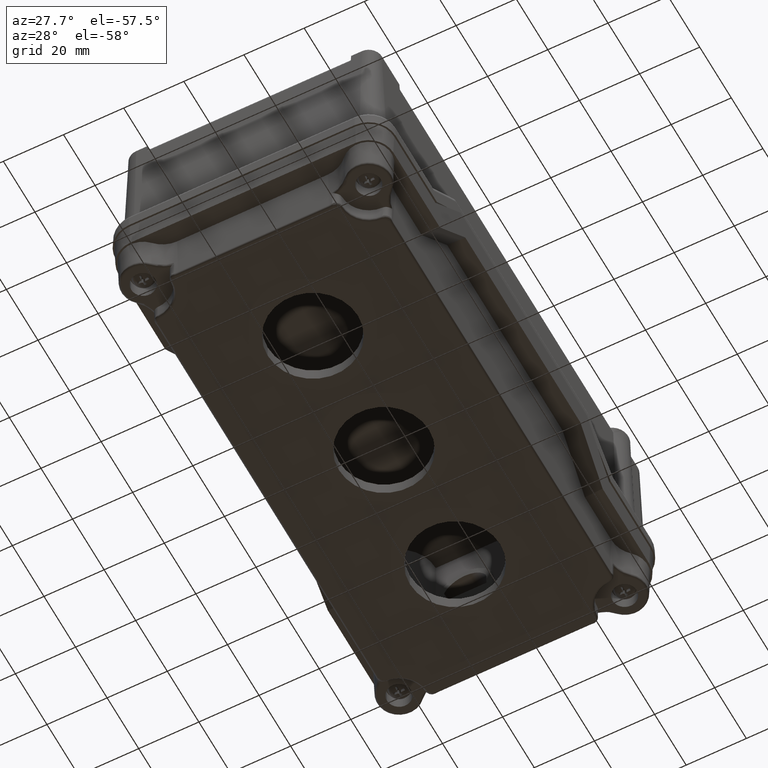
[diagram: clean part render]
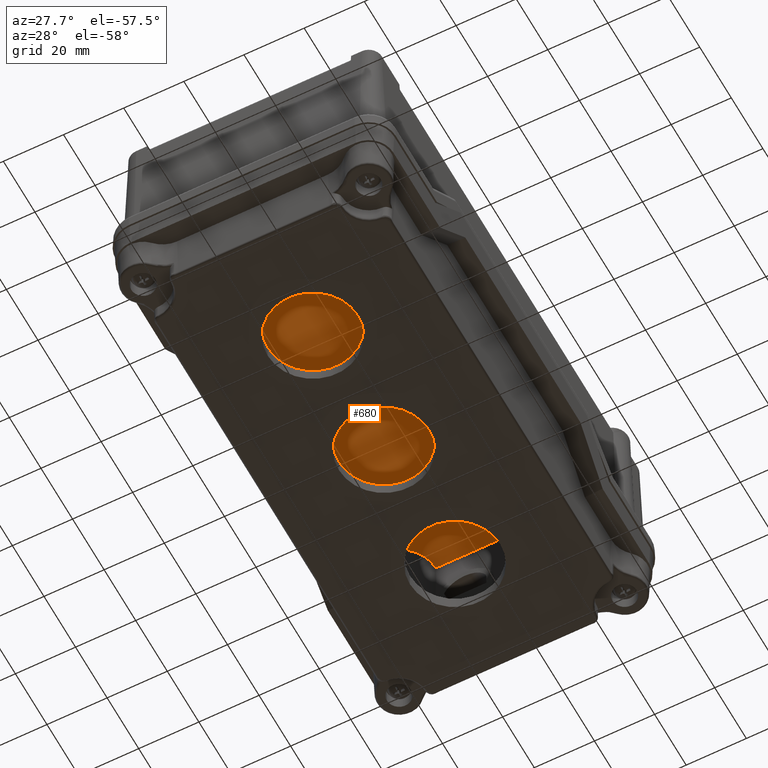
[diagram: same view with one face highlighted and labeled with its STEP entity id]
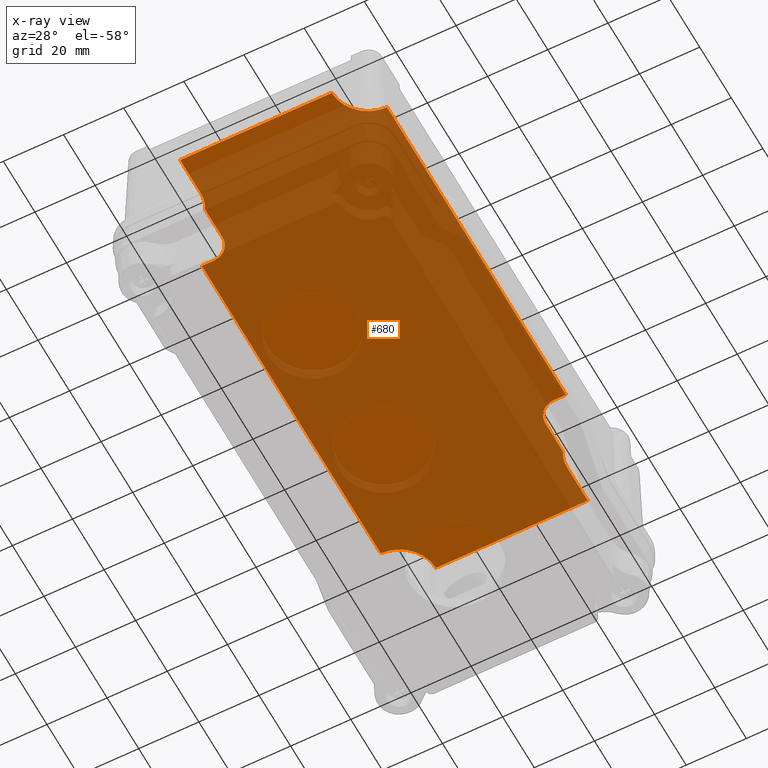
[diagram: x-ray of the same camera — body ghosted, the highlighted face saturated]
A machine part, auxiliary view. The second image highlights one B-rep face of the part: STEP entity #680.
The next image is the same camera in x-ray: the body ghosted, the highlighted face saturated — about 84% of this face is hidden behind the body in this view.
In plain terms, the highlighted planar face has unit normal (0, 0, 1).
Its self-contained STEP definition (entity closure, byte-faithful):
#336=CARTESIAN_POINT('',(4.385091562884541,12.278495355232701,40.0));
#337=VERTEX_POINT('',#336);
#344=CARTESIAN_POINT('',(4.385091562884538,1.278495355232701,40.0));
#345=VERTEX_POINT('',#344);
#346=CARTESIAN_POINT('',(4.385091562884538,1.278495355232701,40.0));
#347=DIRECTION('',(0.0,1.0,0.0));
#348=VECTOR('',#347,11.0);
#349=LINE('',#346,#348);
#350=EDGE_CURVE('',#345,#337,#349,.T.);
#375=CARTESIAN_POINT('',(-1.614908437115456,18.278495355232707,40.0));
#376=VERTEX_POINT('',#375);
#383=CARTESIAN_POINT('',(-1.614908437115459,12.278495355232703,40.0));
#384=DIRECTION('',(0.0,0.0,1.0));
#385=DIRECTION('',(0.0,1.0,0.0));
#386=AXIS2_PLACEMENT_3D('',#383,#384,#385);
#387=CIRCLE('',#386,6.000000000000001);
#388=EDGE_CURVE('',#337,#376,#387,.T.);
#407=CARTESIAN_POINT('',(-5.614908437115457,18.278495355232707,40.0));
#408=VERTEX_POINT('',#407);
#415=CARTESIAN_POINT('',(-1.614908437115456,18.278495355232707,40.0));
#416=DIRECTION('',(-1.0,0.0,0.0));
#417=VECTOR('',#416,4.0);
#418=LINE('',#415,#417);
#419=EDGE_CURVE('',#376,#408,#418,.T.);
#469=CARTESIAN_POINT('',(58.385091562882451,113.920678663648700,40.0));
#470=VERTEX_POINT('',#469);
#477=CARTESIAN_POINT('',(58.385091562882437,124.920678663648740,40.0));
#478=VERTEX_POINT('',#477);
#479=CARTESIAN_POINT('',(58.385091562882437,124.920678663648740,40.0));
#480=DIRECTION('',(0.0,-1.0,0.0));
#481=VECTOR('',#480,11.000000000000043);
#482=LINE('',#479,#481);
#483=EDGE_CURVE('',#478,#470,#482,.T.);
#508=CARTESIAN_POINT('',(64.385091562882465,107.920678663648740,40.0));
#509=VERTEX_POINT('',#508);
#516=CARTESIAN_POINT('',(64.385091562882451,113.920678663648720,40.0));
#517=DIRECTION('',(0.0,0.0,1.0));
#518=DIRECTION('',(0.0,-1.0,0.0));
#519=AXIS2_PLACEMENT_3D('',#516,#517,#518);
#520=CIRCLE('',#519,6.000000000000001);
#521=EDGE_CURVE('',#470,#509,#520,.T.);
#540=CARTESIAN_POINT('',(68.385091562882295,107.920678663648760,40.0));
#541=VERTEX_POINT('',#540);
#548=CARTESIAN_POINT('',(64.385091562882465,107.920678663648740,40.0));
#549=DIRECTION('',(1.0,0.0,0.0));
#550=VECTOR('',#549,3.999999999999830);
#551=LINE('',#548,#550);
#552=EDGE_CURVE('',#509,#541,#551,.T.);
#587=CARTESIAN_POINT('',(31.385091562883609,63.099587009441848,40.0));
#588=DIRECTION('',(0.0,0.0,1.0));
#589=DIRECTION('',(1.0,0.0,0.0));
#590=AXIS2_PLACEMENT_3D('',#587,#588,#589);
#591=PLANE('',#590);
#592=ORIENTED_EDGE('',*,*,#350,.T.);
#593=ORIENTED_EDGE('',*,*,#388,.T.);
#594=ORIENTED_EDGE('',*,*,#419,.T.);
#595=CARTESIAN_POINT('',(-5.614908437115410,131.599587009437330,40.0));
#596=VERTEX_POINT('',#595);
#597=CARTESIAN_POINT('',(-5.614908437115457,18.278495355232707,40.0));
#598=DIRECTION('',(0.0,1.0,0.0));
#599=VECTOR('',#598,113.321091654204620);
#600=LINE('',#597,#599);
#601=EDGE_CURVE('',#408,#596,#600,.T.);
#602=ORIENTED_EDGE('',*,*,#601,.T.);
#603=CARTESIAN_POINT('',(6.385091562886531,143.599587009446450,40.0));
#604=VERTEX_POINT('',#603);
#605=CARTESIAN_POINT('',(-5.614908437113471,143.599587009437330,40.0));
#606=DIRECTION('',(0.0,0.0,1.0));
#607=DIRECTION('',(1.0,7.593925E-013,0.0));
#608=AXIS2_PLACEMENT_3D('',#605,#606,#607);
#609=CIRCLE('',#608,12.000000000000002);
#610=EDGE_CURVE('',#596,#604,#609,.T.);
#611=ORIENTED_EDGE('',*,*,#610,.T.);
#612=CARTESIAN_POINT('',(56.885091562884327,143.599587009446450,40.0));
#613=VERTEX_POINT('',#612);
#614=CARTESIAN_POINT('',(6.385091562886531,143.599587009446450,40.0));
#615=DIRECTION('',(1.0,0.0,0.0));
#616=VECTOR('',#615,50.499999999997797);
#617=LINE('',#614,#616);
#618=EDGE_CURVE('',#604,#613,#617,.T.);
#619=ORIENTED_EDGE('',*,*,#618,.T.);
#620=CARTESIAN_POINT('',(56.885091562884362,130.599587009445660,40.0));
#621=VERTEX_POINT('',#620);
#622=CARTESIAN_POINT('',(56.885091562884327,143.599587009446450,40.0));
#623=DIRECTION('',(0.0,-1.0,0.0));
#624=VECTOR('',#623,13.000000000000796);
#625=LINE('',#622,#624);
#626=EDGE_CURVE('',#613,#621,#625,.T.);
#627=ORIENTED_EDGE('',*,*,#626,.T.);
#628=CARTESIAN_POINT('',(68.385091562884384,130.599587009445660,40.0));
#629=DIRECTION('',(0.0,0.0,1.0));
#630=DIRECTION('',(-1.807250E-013,-1.0,0.0));
#631=AXIS2_PLACEMENT_3D('',#628,#629,#630);
#632=CIRCLE('',#631,11.500000000000025);
#633=EDGE_CURVE('',#621,#478,#632,.T.);
#634=ORIENTED_EDGE('',*,*,#633,.T.);
#635=ORIENTED_EDGE('',*,*,#483,.T.);
#636=ORIENTED_EDGE('',*,*,#521,.T.);
#637=ORIENTED_EDGE('',*,*,#552,.T.);
#638=CARTESIAN_POINT('',(68.385091562882252,-5.400412990580281,40.0));
#639=VERTEX_POINT('',#638);
#640=CARTESIAN_POINT('',(68.385091562882295,107.920678663648760,40.0));
#641=DIRECTION('',(0.0,-1.0,0.0));
#642=VECTOR('',#641,113.321091654229040);
#643=LINE('',#640,#642);
#644=EDGE_CURVE('',#541,#639,#643,.T.);
#645=ORIENTED_EDGE('',*,*,#644,.T.);
#646=CARTESIAN_POINT('',(56.385091562850384,-17.400412990563620,40.0));
#647=VERTEX_POINT('',#646);
#648=CARTESIAN_POINT('',(68.385091562850391,-17.400412990580282,40.0));
#649=DIRECTION('',(0.0,0.0,1.0));
#650=DIRECTION('',(-1.0,1.388704E-012,0.0));
#651=AXIS2_PLACEMENT_3D('',#648,#649,#650);
#652=CIRCLE('',#651,12.000000000000002);
#653=EDGE_CURVE('',#639,#647,#652,.T.);
#654=ORIENTED_EDGE('',*,*,#653,.T.);
#655=CARTESIAN_POINT('',(5.885091562884437,-17.400412990563616,40.0));
#656=VERTEX_POINT('',#655);
#657=CARTESIAN_POINT('',(56.385091562850384,-17.400412990563620,40.0));
#658=DIRECTION('',(-1.0,0.0,0.0));
#659=VECTOR('',#658,50.499999999965951);
#660=LINE('',#657,#659);
#661=EDGE_CURVE('',#647,#656,#660,.T.);
#662=ORIENTED_EDGE('',*,*,#661,.T.);
#663=CARTESIAN_POINT('',(5.885091562884455,-4.400412990567421,40.0));
#664=VERTEX_POINT('',#663);
#665=CARTESIAN_POINT('',(5.885091562884437,-17.400412990563616,40.0));
#666=DIRECTION('',(0.0,1.0,0.0));
#667=VECTOR('',#666,12.999999999996195);
#668=LINE('',#665,#667);
#669=EDGE_CURVE('',#656,#664,#668,.T.);
#670=ORIENTED_EDGE('',*,*,#669,.T.);
#671=CARTESIAN_POINT('',(-5.614908437115513,-4.400412990567418,40.0));
#672=DIRECTION('',(0.0,0.0,1.0));
#673=DIRECTION('',(0.0,1.0,0.0));
#674=AXIS2_PLACEMENT_3D('',#671,#672,#673);
#675=CIRCLE('',#674,11.499999999999968);
#676=EDGE_CURVE('',#664,#345,#675,.T.);
#677=ORIENTED_EDGE('',*,*,#676,.T.);
#678=EDGE_LOOP('',(#592,#593,#594,#602,#611,#619,#627,#634,#635,#636,#637,#645,#654,#662,#670,#677));
#679=FACE_OUTER_BOUND('',#678,.T.);
#680=ADVANCED_FACE('',(#679),#591,.F.);